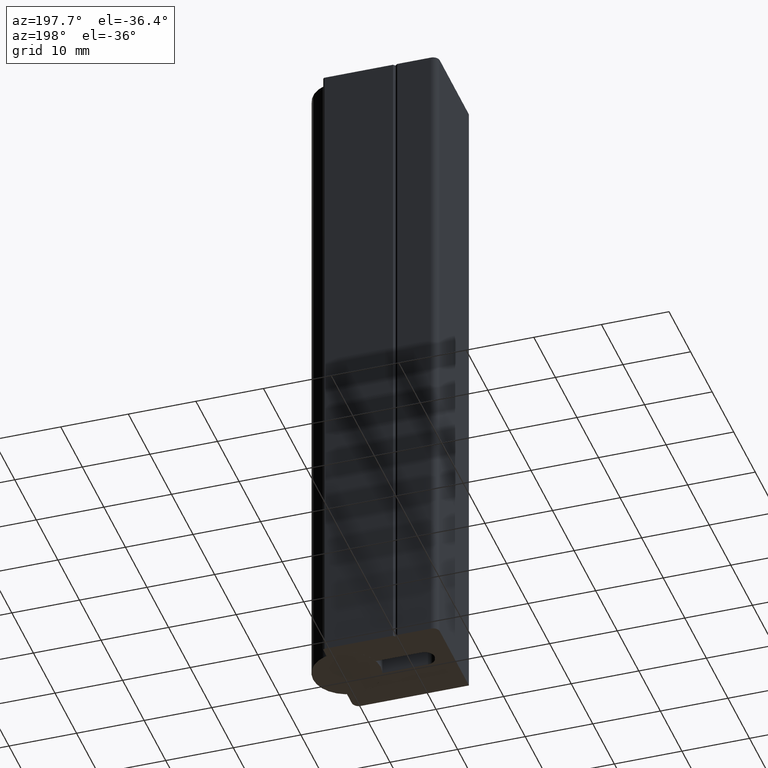
[diagram: clean part render]
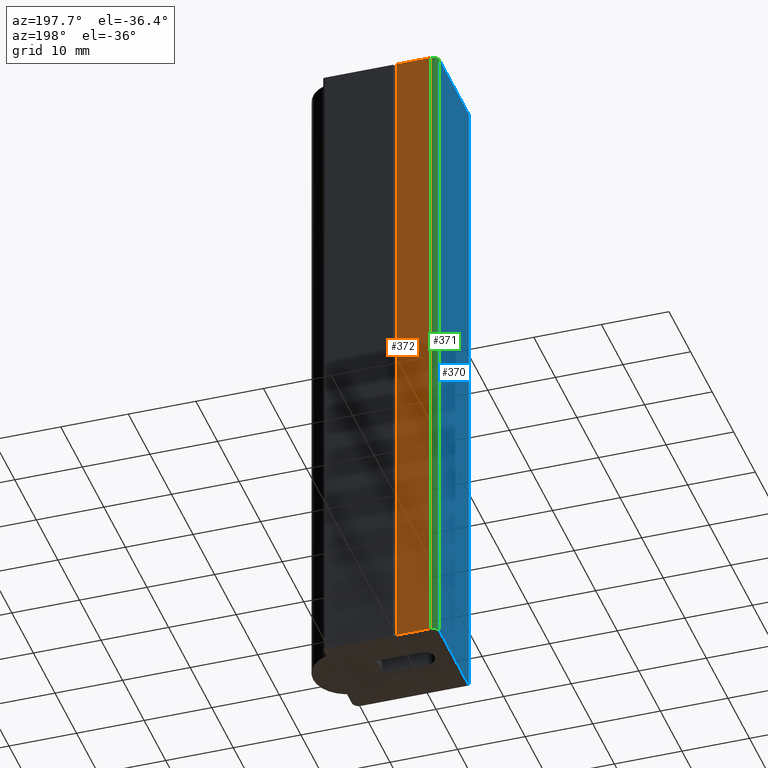
[diagram: same view with three faces highlighted in distinct colors, each labeled with its STEP entity id]
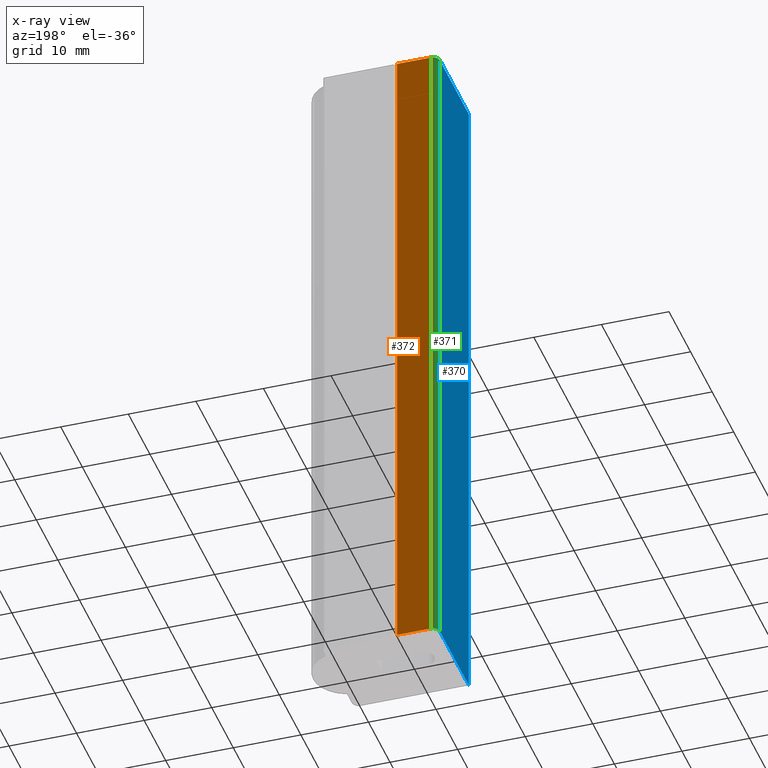
[diagram: x-ray of the same camera — body ghosted, the three highlighted faces saturated]
A machine part, auxiliary view with three faces highlighted in distinct colors.
The next image is the same camera in x-ray (body ghosted, the three faces saturated) — at least one of them is partly hidden behind the body in this view.
Their STEP definitions:

[orange] entity #372 — the highlighted planar face has unit normal (0, 1, 0).
#55=FACE_OUTER_BOUND('',#76,.T.);
#76=EDGE_LOOP('',(#265,#266,#267,#268));
#101=LINE('',#618,#138);
#102=LINE('',#621,#139);
#103=LINE('',#623,#140);
#104=LINE('',#624,#141);
#138=VECTOR('',#498,10.);
#139=VECTOR('',#501,10.);
#140=VECTOR('',#502,10.);
#141=VECTOR('',#503,10.);
#174=VERTEX_POINT('',#614);
#175=VERTEX_POINT('',#616);
#176=VERTEX_POINT('',#620);
#177=VERTEX_POINT('',#622);
#211=EDGE_CURVE('',#174,#175,#101,.T.);
#212=EDGE_CURVE('',#176,#174,#102,.T.);
#213=EDGE_CURVE('',#177,#175,#103,.T.);
#214=EDGE_CURVE('',#176,#177,#104,.T.);
#265=ORIENTED_EDGE('',*,*,#212,.T.);
#266=ORIENTED_EDGE('',*,*,#211,.T.);
#267=ORIENTED_EDGE('',*,*,#213,.F.);
#268=ORIENTED_EDGE('',*,*,#214,.F.);
#357=PLANE('',#443);
#372=ADVANCED_FACE('',(#55),#357,.T.);
#443=AXIS2_PLACEMENT_3D('',#619,#499,#500);
#498=DIRECTION('',(0.,0.,1.));
#499=DIRECTION('center_axis',(2.22044604925309E-16,1.,0.));
#500=DIRECTION('ref_axis',(-1.,2.22044604925309E-16,0.));
#501=DIRECTION('',(-1.,2.22044604925309E-16,0.));
#502=DIRECTION('',(-1.,2.22044604925309E-16,0.));
#503=DIRECTION('',(0.,0.,1.));
#614=CARTESIAN_POINT('',(-14.5,6.49999999999962,0.));
#616=CARTESIAN_POINT('',(-14.5,6.49999999999962,100.));
#618=CARTESIAN_POINT('',(-14.5,6.49999999999962,0.));
#619=CARTESIAN_POINT('Origin',(-9.50000000000626,6.49999999999962,0.));
#620=CARTESIAN_POINT('',(-9.50000000000626,6.49999999999962,0.));
#621=CARTESIAN_POINT('',(-9.50000000000626,6.49999999999962,0.));
#622=CARTESIAN_POINT('',(-9.50000000000626,6.49999999999962,100.));
#623=CARTESIAN_POINT('',(-9.50000000000626,6.49999999999962,100.));
#624=CARTESIAN_POINT('',(-9.50000000000626,6.49999999999962,0.));

[blue] entity #370 — the highlighted planar face has unit normal (-1, -0, 0).
#53=FACE_OUTER_BOUND('',#74,.T.);
#74=EDGE_LOOP('',(#257,#258,#259,#260));
#97=LINE('',#606,#134);
#98=LINE('',#609,#135);
#99=LINE('',#611,#136);
#100=LINE('',#612,#137);
#134=VECTOR('',#486,10.);
#135=VECTOR('',#489,10.);
#136=VECTOR('',#490,10.);
#137=VECTOR('',#491,10.);
#168=VERTEX_POINT('',#599);
#171=VERTEX_POINT('',#604);
#172=VERTEX_POINT('',#608);
#173=VERTEX_POINT('',#610);
#205=EDGE_CURVE('',#168,#171,#97,.T.);
#206=EDGE_CURVE('',#172,#168,#98,.T.);
#207=EDGE_CURVE('',#173,#171,#99,.T.);
#208=EDGE_CURVE('',#172,#173,#100,.T.);
#257=ORIENTED_EDGE('',*,*,#206,.T.);
#258=ORIENTED_EDGE('',*,*,#205,.T.);
#259=ORIENTED_EDGE('',*,*,#207,.F.);
#260=ORIENTED_EDGE('',*,*,#208,.F.);
#356=PLANE('',#439);
#370=ADVANCED_FACE('',(#53),#356,.T.);
#439=AXIS2_PLACEMENT_3D('',#607,#487,#488);
#486=DIRECTION('',(0.,0.,1.));
#487=DIRECTION('center_axis',(-1.,-4.93432455388958E-16,0.));
#488=DIRECTION('ref_axis',(4.93432455388958E-16,-1.,0.));
#489=DIRECTION('',(4.93432455388958E-16,-1.,0.));
#490=DIRECTION('',(4.93432455388958E-16,-1.,0.));
#491=DIRECTION('',(0.,0.,1.));
#599=CARTESIAN_POINT('',(-15.5,-8.00000000000038,0.));
#604=CARTESIAN_POINT('',(-15.5,-8.00000000000038,100.));
#606=CARTESIAN_POINT('',(-15.5,-8.00000000000038,0.));
#607=CARTESIAN_POINT('Origin',(-15.5,5.49999999999962,0.));
#608=CARTESIAN_POINT('',(-15.5,5.49999999999962,0.));
#609=CARTESIAN_POINT('',(-15.5,5.49999999999962,0.));
#610=CARTESIAN_POINT('',(-15.5,5.49999999999962,100.));
#611=CARTESIAN_POINT('',(-15.5,5.49999999999962,100.));
#612=CARTESIAN_POINT('',(-15.5,5.49999999999962,0.));

[green] entity #371 — the highlighted cylindrical surface (edge-blend (fillet) strip) has radius 1 mm, axis along (0, 0, 1).
#31=CIRCLE('',#441,1.);
#32=CIRCLE('',#442,1.);
#45=CYLINDRICAL_SURFACE('',#440,1.);
#54=FACE_OUTER_BOUND('',#75,.T.);
#75=EDGE_LOOP('',(#261,#262,#263,#264));
#100=LINE('',#612,#137);
#101=LINE('',#618,#138);
#137=VECTOR('',#491,10.);
#138=VECTOR('',#498,10.);
#172=VERTEX_POINT('',#608);
#173=VERTEX_POINT('',#610);
#174=VERTEX_POINT('',#614);
#175=VERTEX_POINT('',#616);
#208=EDGE_CURVE('',#172,#173,#100,.T.);
#209=EDGE_CURVE('',#174,#172,#31,.T.);
#210=EDGE_CURVE('',#175,#173,#32,.T.);
#211=EDGE_CURVE('',#174,#175,#101,.T.);
#261=ORIENTED_EDGE('',*,*,#209,.T.);
#262=ORIENTED_EDGE('',*,*,#208,.T.);
#263=ORIENTED_EDGE('',*,*,#210,.F.);
#264=ORIENTED_EDGE('',*,*,#211,.F.);
#371=ADVANCED_FACE('',(#54),#45,.T.);
#440=AXIS2_PLACEMENT_3D('',#613,#492,#493);
#441=AXIS2_PLACEMENT_3D('',#615,#494,#495);
#442=AXIS2_PLACEMENT_3D('',#617,#496,#497);
#491=DIRECTION('',(0.,0.,1.));
#492=DIRECTION('center_axis',(0.,0.,1.));
#493=DIRECTION('ref_axis',(0.,1.,0.));
#494=DIRECTION('center_axis',(0.,0.,1.));
#495=DIRECTION('ref_axis',(0.,1.,0.));
#496=DIRECTION('center_axis',(0.,0.,1.));
#497=DIRECTION('ref_axis',(0.,1.,0.));
#498=DIRECTION('',(0.,0.,1.));
#608=CARTESIAN_POINT('',(-15.5,5.49999999999962,0.));
#610=CARTESIAN_POINT('',(-15.5,5.49999999999962,100.));
#612=CARTESIAN_POINT('',(-15.5,5.49999999999962,0.));
#613=CARTESIAN_POINT('Origin',(-14.5,5.49999999999962,0.));
#614=CARTESIAN_POINT('',(-14.5,6.49999999999962,0.));
#615=CARTESIAN_POINT('Origin',(-14.5,5.49999999999962,0.));
#616=CARTESIAN_POINT('',(-14.5,6.49999999999962,100.));
#617=CARTESIAN_POINT('Origin',(-14.5,5.49999999999962,100.));
#618=CARTESIAN_POINT('',(-14.5,6.49999999999962,0.));